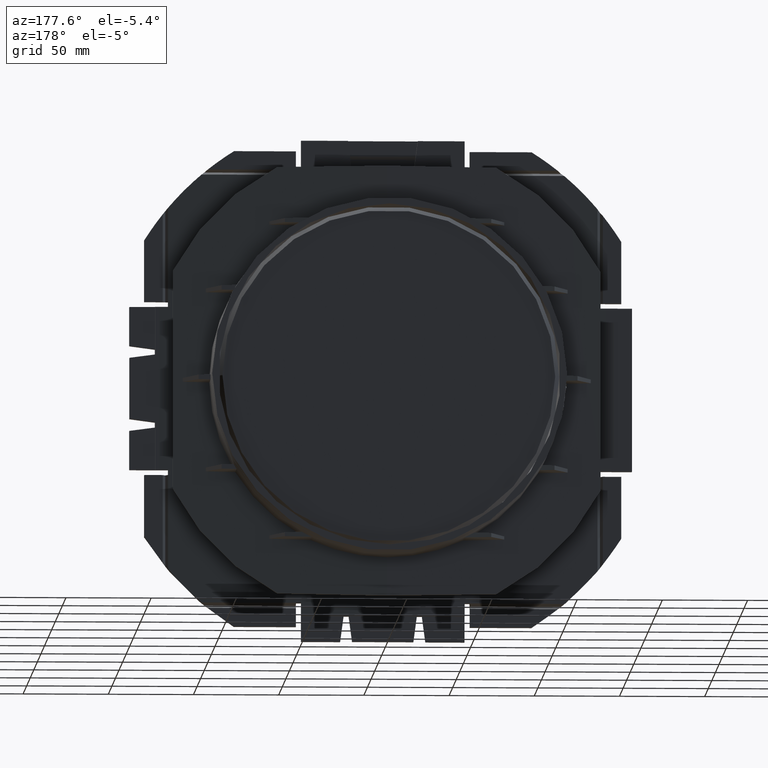
[diagram: clean part render]
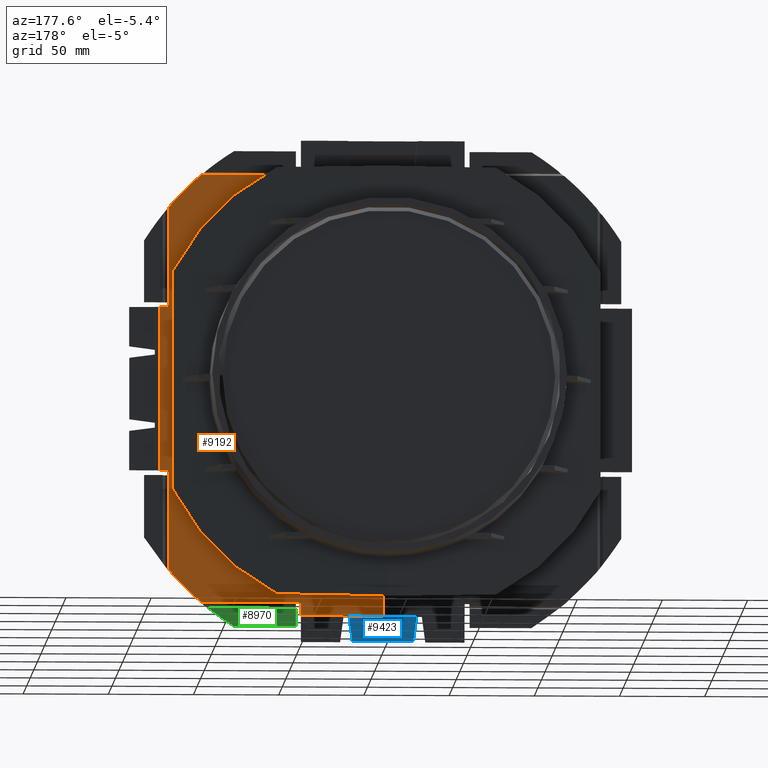
[diagram: same view with three faces highlighted in distinct colors, each labeled with its STEP entity id]
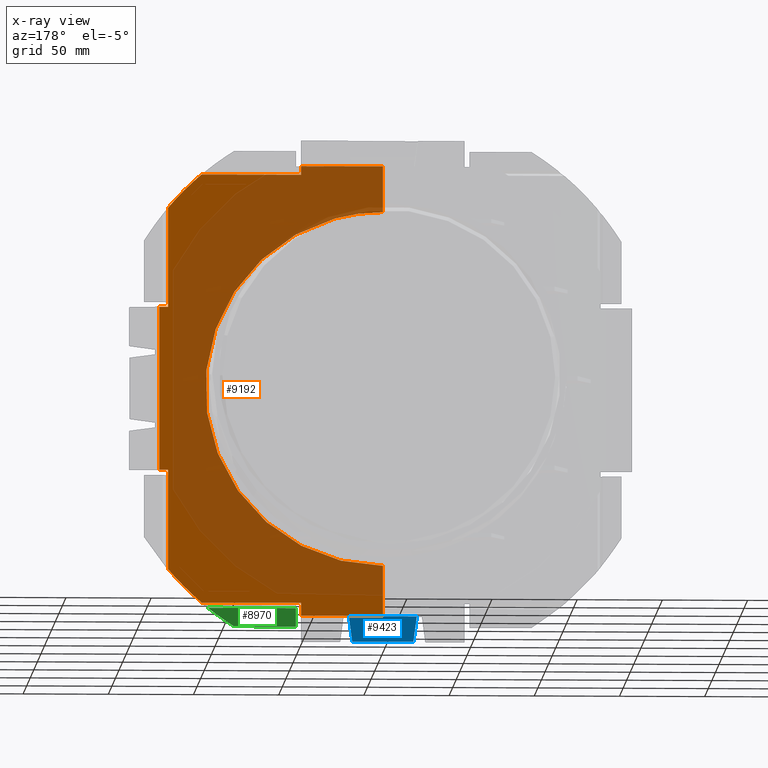
[diagram: x-ray of the same camera — body ghosted, the three highlighted faces saturated]
A machine part, auxiliary view with three faces highlighted in distinct colors.
The next image is the same camera in x-ray (body ghosted, the three faces saturated) — at least one of them is partly hidden behind the body in this view.
Their STEP definitions:

[orange] entity #9192 — the highlighted planar face has unit normal (0.0087, 1, 0).
#404=ELLIPSE('',#9790,104.153965863875,104.15);
#419=ELLIPSE('',#9874,164.916477641611,164.910196214201);
#424=ELLIPSE('',#9884,164.916477641611,164.910196214201);
#884=FACE_OUTER_BOUND('',#1386,.T.);
#1386=EDGE_LOOP('',(#7077,#7078,#7079,#7080,#7081,#7082,#7083,#7084,#7085,
#7086,#7087,#7088,#7089,#7090,#7091,#7092));
#1708=LINE('',#12573,#2567);
#1822=LINE('',#14503,#2681);
#1829=LINE('',#14515,#2688);
#1850=LINE('',#14558,#2709);
#2105=LINE('',#16158,#2964);
#2113=LINE('',#16176,#2972);
#2125=LINE('',#16279,#2984);
#2131=LINE('',#16305,#2990);
#2152=LINE('',#16356,#3011);
#2236=LINE('',#17058,#3095);
#2239=LINE('',#17063,#3098);
#2242=LINE('',#17068,#3101);
#2243=LINE('',#17069,#3102);
#2567=VECTOR('',#10274,10.);
#2681=VECTOR('',#10620,10.);
#2688=VECTOR('',#10629,10.);
#2709=VECTOR('',#10660,10.);
#2964=VECTOR('',#11283,10.);
#2972=VECTOR('',#11295,10.);
#2984=VECTOR('',#11323,10.);
#2990=VECTOR('',#11337,10.);
#3011=VECTOR('',#11382,10.);
#3095=VECTOR('',#11658,10.);
#3098=VECTOR('',#11663,10.);
#3101=VECTOR('',#11668,10.);
#3102=VECTOR('',#11669,10.);
#3426=VERTEX_POINT('',#12570);
#3427=VERTEX_POINT('',#12572);
#3713=VERTEX_POINT('',#14500);
#3714=VERTEX_POINT('',#14502);
#3718=VERTEX_POINT('',#14513);
#3734=VERTEX_POINT('',#14555);
#3735=VERTEX_POINT('',#14557);
#3993=VERTEX_POINT('',#16146);
#3994=VERTEX_POINT('',#16147);
#4005=VERTEX_POINT('',#16174);
#4018=VERTEX_POINT('',#16278);
#4025=VERTEX_POINT('',#16301);
#4040=VERTEX_POINT('',#16355);
#4071=VERTEX_POINT('',#16480);
#4100=VERTEX_POINT('',#17057);
#4101=VERTEX_POINT('',#17062);
#4296=EDGE_CURVE('',#3427,#3426,#1708,.F.);
#4588=EDGE_CURVE('',#3713,#3714,#1822,.T.);
#4595=EDGE_CURVE('',#3718,#3713,#1829,.T.);
#4616=EDGE_CURVE('',#3734,#3735,#1850,.F.);
#4985=EDGE_CURVE('',#3993,#3994,#404,.T.);
#4991=EDGE_CURVE('',#3993,#3718,#2105,.F.);
#5001=EDGE_CURVE('',#3994,#4005,#2113,.T.);
#5020=EDGE_CURVE('',#4018,#3735,#2125,.T.);
#5030=EDGE_CURVE('',#3426,#4025,#2131,.T.);
#5056=EDGE_CURVE('',#4040,#3714,#2152,.T.);
#5109=EDGE_CURVE('',#4025,#4018,#419,.T.);
#5121=EDGE_CURVE('',#4071,#4040,#424,.T.);
#5203=EDGE_CURVE('',#4100,#4071,#2236,.T.);
#5206=EDGE_CURVE('',#4101,#4100,#2239,.T.);
#5209=EDGE_CURVE('',#4005,#3427,#2242,.F.);
#5210=EDGE_CURVE('',#3734,#4101,#2243,.T.);
#7077=ORIENTED_EDGE('',*,*,#4985,.T.);
#7078=ORIENTED_EDGE('',*,*,#5001,.T.);
#7079=ORIENTED_EDGE('',*,*,#5209,.T.);
#7080=ORIENTED_EDGE('',*,*,#4296,.T.);
#7081=ORIENTED_EDGE('',*,*,#5030,.T.);
#7082=ORIENTED_EDGE('',*,*,#5109,.T.);
#7083=ORIENTED_EDGE('',*,*,#5020,.T.);
#7084=ORIENTED_EDGE('',*,*,#4616,.F.);
#7085=ORIENTED_EDGE('',*,*,#5210,.T.);
#7086=ORIENTED_EDGE('',*,*,#5206,.T.);
#7087=ORIENTED_EDGE('',*,*,#5203,.T.);
#7088=ORIENTED_EDGE('',*,*,#5121,.T.);
#7089=ORIENTED_EDGE('',*,*,#5056,.T.);
#7090=ORIENTED_EDGE('',*,*,#4588,.F.);
#7091=ORIENTED_EDGE('',*,*,#4595,.F.);
#7092=ORIENTED_EDGE('',*,*,#4991,.F.);
#8313=PLANE('',#9919);
#9192=ADVANCED_FACE('',(#884),#8313,.T.);
#9790=AXIS2_PLACEMENT_3D('',#16148,#11270,#11271);
#9874=AXIS2_PLACEMENT_3D('',#16461,#11506,#11507);
#9884=AXIS2_PLACEMENT_3D('',#16481,#11532,#11533);
#9919=AXIS2_PLACEMENT_3D('',#17067,#11666,#11667);
#10274=DIRECTION('',(-6.12323399573677E-17,5.34366535326744E-19,1.));
#10620=DIRECTION('',(6.38977280359801E-16,-5.5762702469986E-18,1.));
#10629=DIRECTION('',(0.99996191146358,-0.00872653539713711,-0.000152322241954644));
#10660=DIRECTION('',(0.99996191146358,-0.00872653539713711,-0.000152322241956117));
#11270=DIRECTION('center_axis',(-0.00872653549837393,-0.999961923064171,
0.));
#11271=DIRECTION('ref_axis',(0.999961923064171,-0.00872653549837394,0.));
#11283=DIRECTION('',(-1.04246293391274E-16,-9.09743620102302E-19,1.));
#11295=DIRECTION('',(-1.04246293391274E-16,-9.09743620102302E-19,1.));
#11323=DIRECTION('',(-5.98242180462487E-15,5.22078041575139E-17,-1.));
#11337=DIRECTION('',(0.999961923064171,-0.00872653549837393,-5.85973399549874E-15));
#11382=DIRECTION('',(-0.999961923064171,0.00872653549837393,5.92096400391623E-15));
#11506=DIRECTION('center_axis',(0.00872653549837393,0.999961923064171,0.));
#11507=DIRECTION('ref_axis',(0.999961923064171,-0.00872653549837395,-2.91523687257788E-12));
#11532=DIRECTION('center_axis',(0.00872653549837393,0.999961923064171,0.));
#11533=DIRECTION('ref_axis',(0.999961923064171,-0.00872653549837395,-2.91523687257788E-12));
#11658=DIRECTION('',(5.85995712471014E-15,-5.11390710868604E-17,-1.));
#11663=DIRECTION('',(-0.99996191146358,0.00872653539713711,-0.000152322241955995));
#11666=DIRECTION('center_axis',(0.00872653549837393,0.999961923064171,0.));
#11667=DIRECTION('ref_axis',(0.,0.,1.));
#11668=DIRECTION('',(-0.99996191146358,0.00872653539713711,-0.000152322241955417));
#11669=DIRECTION('',(0.,0.,-1.));
#12570=CARTESIAN_POINT('',(48.,-83.7739245998089,126.));
#12572=CARTESIAN_POINT('',(48.,-83.7739245998089,131.134961111962));
#12573=CARTESIAN_POINT('',(48.,-83.7739245998089,63.));
#14500=CARTESIAN_POINT('',(48.,-83.7739245998089,-133.65241617689));
#14502=CARTESIAN_POINT('',(48.,-83.7739245998089,-126.));
#14503=CARTESIAN_POINT('',(48.,-83.7739245998089,-69.95));
#14513=CARTESIAN_POINT('',(2.83840603253516E-14,-83.3550349458525,-133.645104430783));
#14515=CARTESIAN_POINT('',(-12.0017677686246,-83.2502971052803,-133.643276224975));
#14555=CARTESIAN_POINT('',(131.2,-84.5,48.));
#14557=CARTESIAN_POINT('',(126.,-84.4546202874881,48.0007921058283));
#14558=CARTESIAN_POINT('',(69.9732786641204,-83.9656824976401,48.009326546696));
#16146=CARTESIAN_POINT('',(2.5309305015254E-14,-83.3550349458525,-104.15));
#16147=CARTESIAN_POINT('',(3.59480210185154E-15,-83.3550349458525,104.15));
#16148=CARTESIAN_POINT('Origin',(0.,-83.3550349458524,0.));
#16158=CARTESIAN_POINT('',(2.06507987793314E-14,-83.3550349458525,-59.4625));
#16174=CARTESIAN_POINT('',(7.80934745044377E-16,-83.3550349458525,131.127649365855));
#16176=CARTESIAN_POINT('',(2.06507987793314E-14,-83.3550349458525,-59.4625));
#16278=CARTESIAN_POINT('',(126.,-84.4546202874881,106.422285755745));
#16279=CARTESIAN_POINT('',(126.,-84.454620287488,23.9999999999996));
#16301=CARTESIAN_POINT('',(106.417662846601,-84.2837278201162,126.));
#16305=CARTESIAN_POINT('',(25.5230039655424,-83.5777708270827,126.));
#16355=CARTESIAN_POINT('',(106.4176628466,-84.2837278201163,-126.));
#16356=CARTESIAN_POINT('',(24.0231181941743,-83.5646815222548,-126.));
#16461=CARTESIAN_POINT('Origin',(0.0251204479011946,-83.3552541686801,3.5527136788005E-14));
#16480=CARTESIAN_POINT('',(126.,-84.454620287488,-106.422285755745));
#16481=CARTESIAN_POINT('Origin',(0.0251204479011946,-83.3552541686801,3.5527136788005E-14));
#17057=CARTESIAN_POINT('',(126.,-84.4546202874881,-48.0007921058283));
#17058=CARTESIAN_POINT('',(126.,-84.454620287488,-25.4999999999996));
#17062=CARTESIAN_POINT('',(131.2,-84.5,-48.));
#17063=CARTESIAN_POINT('',(63.023808084694,-83.9050353866777,-48.0103851459556));
#17067=CARTESIAN_POINT('Origin',(0.00499569398072733,-83.3550785426133,
-2.87087974044485E-15));
#17068=CARTESIAN_POINT('',(-12.0015753790037,-83.250298784239,131.125821189353));
#17069=CARTESIAN_POINT('',(131.2,-84.5,-24.));

[blue] entity #9423 — the highlighted planar face has unit normal (0, 1, 0).
#1115=FACE_OUTER_BOUND('',#1618,.T.);
#1618=EDGE_LOOP('',(#8109,#8110,#8111,#8112));
#1815=LINE('',#14488,#2674);
#1818=LINE('',#14494,#2677);
#1832=LINE('',#14519,#2691);
#2181=LINE('',#16496,#3040);
#2674=VECTOR('',#10609,10.);
#2677=VECTOR('',#10614,10.);
#2691=VECTOR('',#10632,10.);
#3040=VECTOR('',#11553,10.);
#3707=VERTEX_POINT('',#14485);
#3708=VERTEX_POINT('',#14487);
#3709=VERTEX_POINT('',#14491);
#3710=VERTEX_POINT('',#14493);
#4581=EDGE_CURVE('',#3707,#3708,#1815,.T.);
#4584=EDGE_CURVE('',#3709,#3710,#1818,.T.);
#4598=EDGE_CURVE('',#3707,#3710,#1832,.T.);
#5127=EDGE_CURVE('',#3708,#3709,#2181,.T.);
#8109=ORIENTED_EDGE('',*,*,#4584,.F.);
#8110=ORIENTED_EDGE('',*,*,#5127,.F.);
#8111=ORIENTED_EDGE('',*,*,#4581,.F.);
#8112=ORIENTED_EDGE('',*,*,#4598,.T.);
#8470=PLANE('',#10146);
#9423=ADVANCED_FACE('',(#1115),#8470,.T.);
#10146=AXIS2_PLACEMENT_3D('',#18298,#12361,#12362);
#10609=DIRECTION('',(0.132163720091018,0.,-0.991227900682635));
#10614=DIRECTION('',(0.132163720091018,0.,0.991227900682635));
#10632=DIRECTION('',(1.,0.,7.7315263623465E-16));
#11553=DIRECTION('',(1.,0.,0.));
#12361=DIRECTION('center_axis',(0.,1.,0.));
#12362=DIRECTION('ref_axis',(0.,0.,1.));
#14485=CARTESIAN_POINT('',(-19.9518260713595,-84.5,-133.665089870144));
#14487=CARTESIAN_POINT('',(-17.9471713873786,-84.5,-148.7));
#14488=CARTESIAN_POINT('',(-28.0310635902192,-84.5,-73.0708084786959));
#14491=CARTESIAN_POINT('',(17.9471713873786,-84.5,-148.7));
#14493=CARTESIAN_POINT('',(19.9518260713595,-84.5,-133.665089870144));
#14494=CARTESIAN_POINT('',(28.0310635902192,-84.5,-73.0708084786959));
#14519=CARTESIAN_POINT('',(-11.9999999999999,-84.5,-133.665089870144));
#16496=CARTESIAN_POINT('',(-48.,-84.5,-148.7));
#18298=CARTESIAN_POINT('Origin',(-7.42564882971731E-15,-84.5,-2.87087974044485E-15));

[green] entity #8970 — the highlighted planar face has unit normal (0, -1, 0).
#552=CIRCLE('',#9600,164.938907272751);
#662=FACE_OUTER_BOUND('',#1163,.T.);
#1163=EDGE_LOOP('',(#5891,#5892,#5893,#5894));
#1801=LINE('',#14458,#2660);
#1802=LINE('',#14460,#2661);
#1803=LINE('',#14463,#2662);
#2660=VECTOR('',#10587,10.);
#2661=VECTOR('',#10588,10.);
#2662=VECTOR('',#10591,10.);
#3695=VERTEX_POINT('',#14456);
#3696=VERTEX_POINT('',#14457);
#3697=VERTEX_POINT('',#14459);
#3698=VERTEX_POINT('',#14461);
#4566=EDGE_CURVE('',#3695,#3696,#1801,.T.);
#4567=EDGE_CURVE('',#3695,#3697,#1802,.T.);
#4568=EDGE_CURVE('',#3698,#3697,#552,.F.);
#4569=EDGE_CURVE('',#3696,#3698,#1803,.T.);
#5891=ORIENTED_EDGE('',*,*,#4566,.F.);
#5892=ORIENTED_EDGE('',*,*,#4567,.T.);
#5893=ORIENTED_EDGE('',*,*,#4568,.F.);
#5894=ORIENTED_EDGE('',*,*,#4569,.F.);
#8162=PLANE('',#9599);
#8970=ADVANCED_FACE('',(#662),#8162,.F.);
#9599=AXIS2_PLACEMENT_3D('',#14455,#10585,#10586);
#9600=AXIS2_PLACEMENT_3D('',#14462,#10589,#10590);
#10585=DIRECTION('center_axis',(0.,-1.,0.));
#10586=DIRECTION('ref_axis',(0.,0.,-1.));
#10587=DIRECTION('',(-6.34413156928661E-16,0.,-1.));
#10588=DIRECTION('',(1.,0.,-6.65302187041292E-16));
#10589=DIRECTION('center_axis',(0.,1.,0.));
#10590=DIRECTION('ref_axis',(-1.,0.,0.));
#10591=DIRECTION('',(1.,0.,0.));
#14455=CARTESIAN_POINT('Origin',(75.3724727973501,-85.,-131.886369925254));
#14456=CARTESIAN_POINT('',(51.,-85.,-129.117691453624));
#14457=CARTESIAN_POINT('',(51.,-85.,-139.938907272751));
#14458=CARTESIAN_POINT('',(51.,-85.,-128.943184962627));
#14459=CARTESIAN_POINT('',(102.632669681812,-85.,-129.117691453624));
#14460=CARTESIAN_POINT('',(63.186236398675,-85.,-129.117691453624));
#14461=CARTESIAN_POINT('',(87.3037534338447,-85.,-139.938907272751));
#14462=CARTESIAN_POINT('Origin',(0.,-85.,0.));
#14463=CARTESIAN_POINT('',(-5.9743865927574,-85.,-139.938907272751));